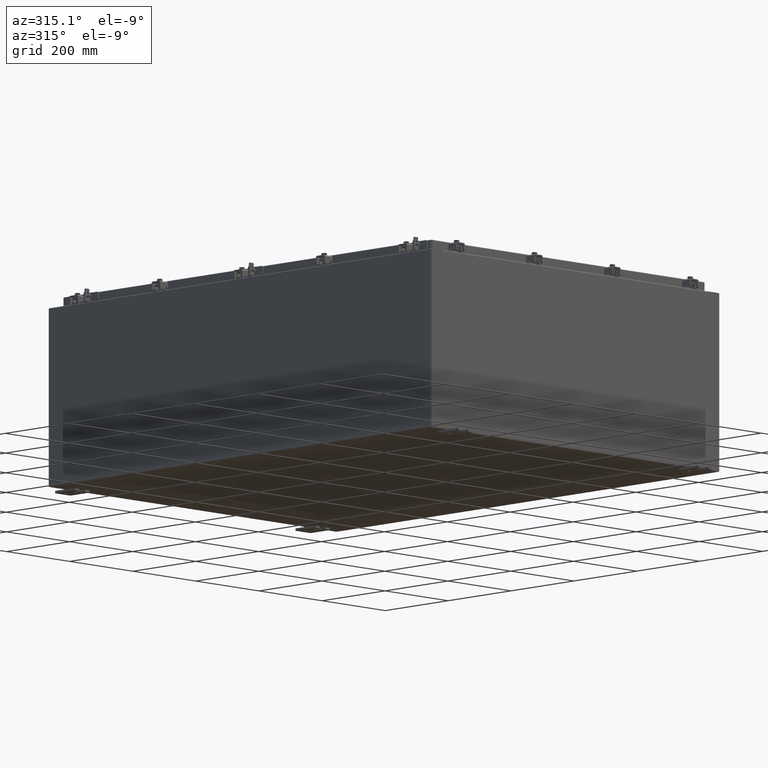
[diagram: clean part render]
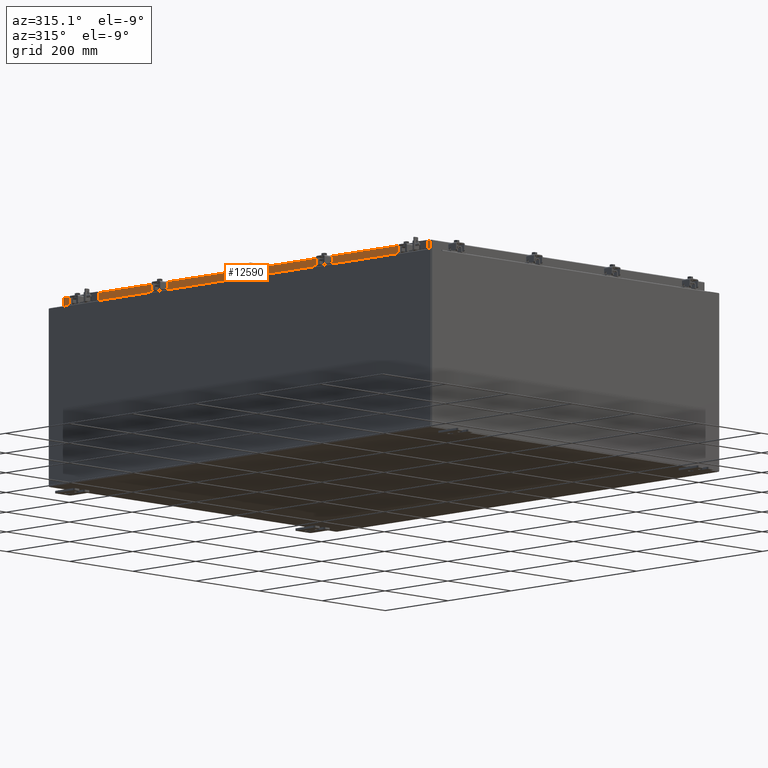
[diagram: same view with one face highlighted and labeled with its STEP entity id]
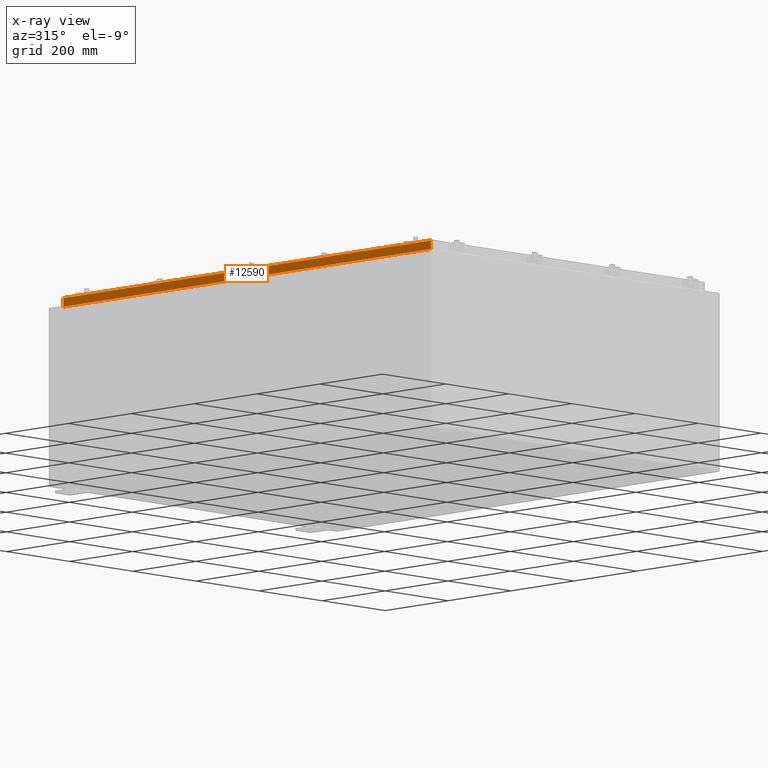
[diagram: x-ray of the same camera — body ghosted, the highlighted face saturated]
A machine part, auxiliary view. The second image highlights one B-rep face of the part: STEP entity #12590.
The next image is the same camera in x-ray: the body ghosted, the highlighted face saturated — about 0% of this face is hidden behind the body in this view.
In plain terms, the highlighted planar face has unit normal (1, 0, -0).
Its self-contained STEP definition (entity closure, byte-faithful):
#512 = VECTOR ( 'NONE', #18440, 39.37007874015748100 ) ;
#775 = EDGE_LOOP ( 'NONE', ( #12397, #27132, #14359, #13698, #5875, #2958 ) ) ;
#983 = LINE ( 'NONE', #20695, #22058 ) ;
#1184 = LINE ( 'NONE', #14231, #512 ) ;
#2039 = VERTEX_POINT ( 'NONE', #8171 ) ;
#2958 = ORIENTED_EDGE ( 'NONE', *, *, #25897, .F. ) ;
#3491 = CARTESIAN_POINT ( 'NONE',  ( -17.07800000000000300, -23.00515786437625800, -0.8499999999999999800 ) ) ;
#3889 = PLANE ( 'NONE',  #22987 ) ;
#4276 = DIRECTION ( 'NONE',  ( -2.818880942772360100E-015, 6.982962677686265900E-015, -1.000000000000000000 ) ) ;
#4328 = DIRECTION ( 'NONE',  ( -4.379057701015054300E-047, 1.000000000000000000, 1.212498568245375500E-016 ) ) ;
#4401 = VECTOR ( 'NONE', #4276, 39.37007874015748100 ) ;
#5059 = LINE ( 'NONE', #16908, #4401 ) ;
#5456 = EDGE_CURVE ( 'NONE', #14615, #8486, #16306, .T. ) ;
#5507 = EDGE_CURVE ( 'NONE', #14615, #14080, #21212, .T. ) ;
#5529 = CARTESIAN_POINT ( 'NONE',  ( -17.07800000000000300, 23.00515786437626200, -0.8499999999999934300 ) ) ;
#5875 = ORIENTED_EDGE ( 'NONE', *, *, #14107, .F. ) ;
#6575 = CARTESIAN_POINT ( 'NONE',  ( -17.07799999999998900, -22.25515786437626200, -0.8500000000000020900 ) ) ;
#7851 = CARTESIAN_POINT ( 'NONE',  ( -17.07799999999999900, 23.00515786437626200, 2.076204475184840000E-013 ) ) ;
#8155 = DIRECTION ( 'NONE',  ( 1.000000000000000000, 3.417889107165661600E-031, -2.818880942772360100E-015 ) ) ;
#8171 = CARTESIAN_POINT ( 'NONE',  ( -17.07799999999998900, 22.25515786437623700, -0.8500000000000020900 ) ) ;
#8486 = VERTEX_POINT ( 'NONE', #5529 ) ;
#9206 = VERTEX_POINT ( 'NONE', #3491 ) ;
#9390 = VECTOR ( 'NONE', #26953, 39.37007874015748100 ) ;
#10147 = CARTESIAN_POINT ( 'NONE',  ( -17.07799999999999900, -23.00515786437626200, -0.08770000000000026400 ) ) ;
#10168 = CARTESIAN_POINT ( 'NONE',  ( -17.07799999999999900, -23.09399999999999400, -0.08770000000000026400 ) ) ;
#10703 = VECTOR ( 'NONE', #18259, 39.37007874015748100 ) ;
#12397 = ORIENTED_EDGE ( 'NONE', *, *, #5507, .F. ) ;
#12590 = ADVANCED_FACE ( 'NONE', ( #27058 ), #3889, .F. ) ;
#12832 = CARTESIAN_POINT ( 'NONE',  ( -17.07800000000000300, -23.09399999999999400, -0.8499999999999999800 ) ) ;
#13698 = ORIENTED_EDGE ( 'NONE', *, *, #25017, .F. ) ;
#14080 = VERTEX_POINT ( 'NONE', #10147 ) ;
#14107 = EDGE_CURVE ( 'NONE', #9206, #19873, #983, .T. ) ;
#14231 = CARTESIAN_POINT ( 'NONE',  ( -17.07799999999998900, -22.25515786437625500, -0.8500000000000020900 ) ) ;
#14359 = ORIENTED_EDGE ( 'NONE', *, *, #23262, .F. ) ;
#14615 = VERTEX_POINT ( 'NONE', #22125 ) ;
#14755 = LINE ( 'NONE', #12832, #26556 ) ;
#16306 = LINE ( 'NONE', #7851, #10703 ) ;
#16908 = CARTESIAN_POINT ( 'NONE',  ( -17.07799999999999900, -23.00515786437626200, -0.07470000000000015500 ) ) ;
#18259 = DIRECTION ( 'NONE',  ( -2.818880942772360100E-015, 6.982962677686265900E-015, -1.000000000000000000 ) ) ;
#18440 = DIRECTION ( 'NONE',  ( -0.0000000000000000000, 1.000000000000000000, -0.0000000000000000000 ) ) ;
#19873 = VERTEX_POINT ( 'NONE', #6575 ) ;
#20695 = CARTESIAN_POINT ( 'NONE',  ( -17.07800000000000300, -23.09399999999999400, -0.8499999999999999800 ) ) ;
#20736 = CARTESIAN_POINT ( 'NONE',  ( -17.07799999999999900, 0.0000000000000000000, 4.808052468849102900E-014 ) ) ;
#21212 = LINE ( 'NONE', #10168, #9390 ) ;
#22058 = VECTOR ( 'NONE', #22780, 39.37007874015748100 ) ;
#22125 = CARTESIAN_POINT ( 'NONE',  ( -17.07799999999999900, 23.00515786437626200, -0.08770000000000026400 ) ) ;
#22780 = DIRECTION ( 'NONE',  ( -4.379057701015054300E-047, 1.000000000000000000, 1.212498568245375500E-016 ) ) ;
#22829 = DIRECTION ( 'NONE',  ( -2.818880942772360100E-015, 0.0000000000000000000, -1.000000000000000000 ) ) ;
#22987 = AXIS2_PLACEMENT_3D ( 'NONE', #20736, #8155, #22829 ) ;
#23262 = EDGE_CURVE ( 'NONE', #2039, #8486, #14755, .T. ) ;
#25017 = EDGE_CURVE ( 'NONE', #19873, #2039, #1184, .T. ) ;
#25897 = EDGE_CURVE ( 'NONE', #14080, #9206, #5059, .T. ) ;
#26556 = VECTOR ( 'NONE', #4328, 39.37007874015748100 ) ;
#26953 = DIRECTION ( 'NONE',  ( 3.417889107165661600E-031, -1.000000000000000000, -9.316371385484559400E-046 ) ) ;
#27058 = FACE_OUTER_BOUND ( 'NONE', #775, .T. ) ;
#27132 = ORIENTED_EDGE ( 'NONE', *, *, #5456, .T. ) ;